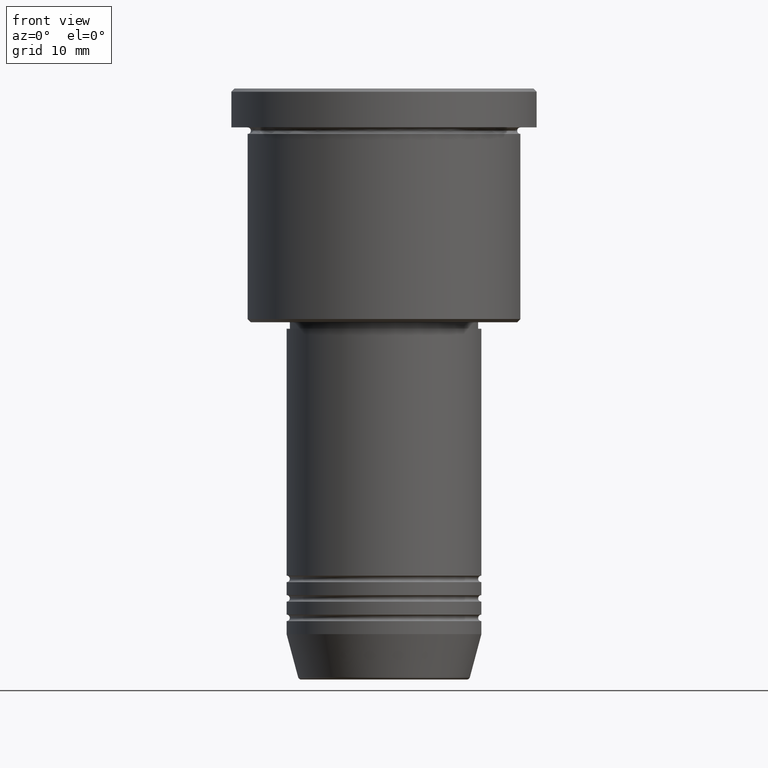
[diagram: clean part render]
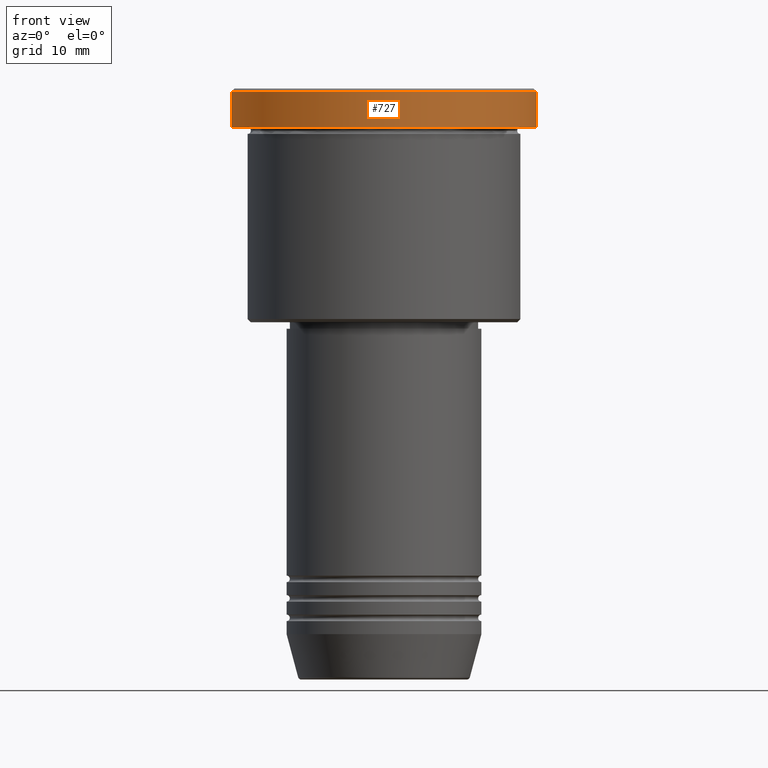
[diagram: same view with one face highlighted and labeled with its STEP entity id]
A machine part, front view. The second image highlights one B-rep face of the part: STEP entity #727.
In plain terms, the highlighted cylindrical surface (partial cylindrical patch) has radius 23.5 mm, axis along (-0, -0, 1).
Its self-contained STEP definition (entity closure, byte-faithful):
#1 = EDGE_CURVE ( 'NONE', #344, #1020, #1113, .T. ) ;
#19 = CARTESIAN_POINT ( 'NONE',  ( 0.000000000000000000, 0.000000000000000000, -0.5000000000000143219 ) ) ;
#69 = ORIENTED_EDGE ( 'NONE', *, *, #302, .T. ) ;
#107 = CARTESIAN_POINT ( 'NONE',  ( 23.50000000000000000, 0.000000000000000000, 0.000000000000000000 ) ) ;
#174 = CARTESIAN_POINT ( 'NONE',  ( 23.50000000000000000, 0.000000000000000000, -0.5000000000000143219 ) ) ;
#183 = DIRECTION ( 'NONE',  ( -0.000000000000000000, -0.000000000000000000, 1.000000000000000000 ) ) ;
#191 = FACE_OUTER_BOUND ( 'NONE', #913, .T. ) ;
#275 = ORIENTED_EDGE ( 'NONE', *, *, #334, .T. ) ;
#286 = DIRECTION ( 'NONE',  ( 1.000000000000000000, 0.000000000000000000, 0.000000000000000000 ) ) ;
#291 = DIRECTION ( 'NONE',  ( -0.000000000000000000, -0.000000000000000000, 1.000000000000000000 ) ) ;
#293 = CYLINDRICAL_SURFACE ( 'NONE', #634, 23.50000000000000000 ) ;
#302 = EDGE_CURVE ( 'NONE', #344, #451, #697, .T. ) ;
#334 = EDGE_CURVE ( 'NONE', #583, #1020, #1179, .T. ) ;
#344 = VERTEX_POINT ( 'NONE', #927 ) ;
#451 = VERTEX_POINT ( 'NONE', #971 ) ;
#537 = CARTESIAN_POINT ( 'NONE',  ( 0.000000000000000000, 0.000000000000000000, -5.999999999999994671 ) ) ;
#538 = VECTOR ( 'NONE', #291, 1000.000000000000000 ) ;
#551 = CARTESIAN_POINT ( 'NONE',  ( 0.000000000000000000, 0.000000000000000000, 0.000000000000000000 ) ) ;
#583 = VERTEX_POINT ( 'NONE', #174 ) ;
#612 = AXIS2_PLACEMENT_3D ( 'NONE', #537, #1030, #764 ) ;
#634 = AXIS2_PLACEMENT_3D ( 'NONE', #551, #920, #286 ) ;
#637 = ORIENTED_EDGE ( 'NONE', *, *, #1, .F. ) ;
#643 = EDGE_CURVE ( 'NONE', #451, #583, #1011, .T. ) ;
#697 = CIRCLE ( 'NONE', #612, 23.50000000000000000 ) ;
#727 = ADVANCED_FACE ( 'NONE', ( #191 ), #293, .T. ) ;
#764 = DIRECTION ( 'NONE',  ( 1.000000000000000000, 0.000000000000000000, 0.000000000000000000 ) ) ;
#772 = DIRECTION ( 'NONE',  ( 0.000000000000000000, 0.000000000000000000, -1.000000000000000000 ) ) ;
#828 = AXIS2_PLACEMENT_3D ( 'NONE', #19, #772, #1019 ) ;
#858 = CARTESIAN_POINT ( 'NONE',  ( -23.50000000000000000, 2.877919977996280320E-15, 0.000000000000000000 ) ) ;
#913 = EDGE_LOOP ( 'NONE', ( #637, #69, #1111, #275 ) ) ;
#920 = DIRECTION ( 'NONE',  ( -0.000000000000000000, -0.000000000000000000, 1.000000000000000000 ) ) ;
#927 = CARTESIAN_POINT ( 'NONE',  ( -23.50000000000000000, 2.877919977996280320E-15, -5.999999999999994671 ) ) ;
#971 = CARTESIAN_POINT ( 'NONE',  ( 23.50000000000000000, 0.000000000000000000, -5.999999999999994671 ) ) ;
#1011 = LINE ( 'NONE', #107, #1070 ) ;
#1019 = DIRECTION ( 'NONE',  ( 1.000000000000000000, 0.000000000000000000, 0.000000000000000000 ) ) ;
#1020 = VERTEX_POINT ( 'NONE', #1072 ) ;
#1030 = DIRECTION ( 'NONE',  ( -0.000000000000000000, -0.000000000000000000, 1.000000000000000000 ) ) ;
#1070 = VECTOR ( 'NONE', #183, 1000.000000000000000 ) ;
#1072 = CARTESIAN_POINT ( 'NONE',  ( -23.50000000000000000, 2.877919977996280320E-15, -0.5000000000000143219 ) ) ;
#1111 = ORIENTED_EDGE ( 'NONE', *, *, #643, .T. ) ;
#1113 = LINE ( 'NONE', #858, #538 ) ;
#1179 = CIRCLE ( 'NONE', #828, 23.50000000000000000 ) ;